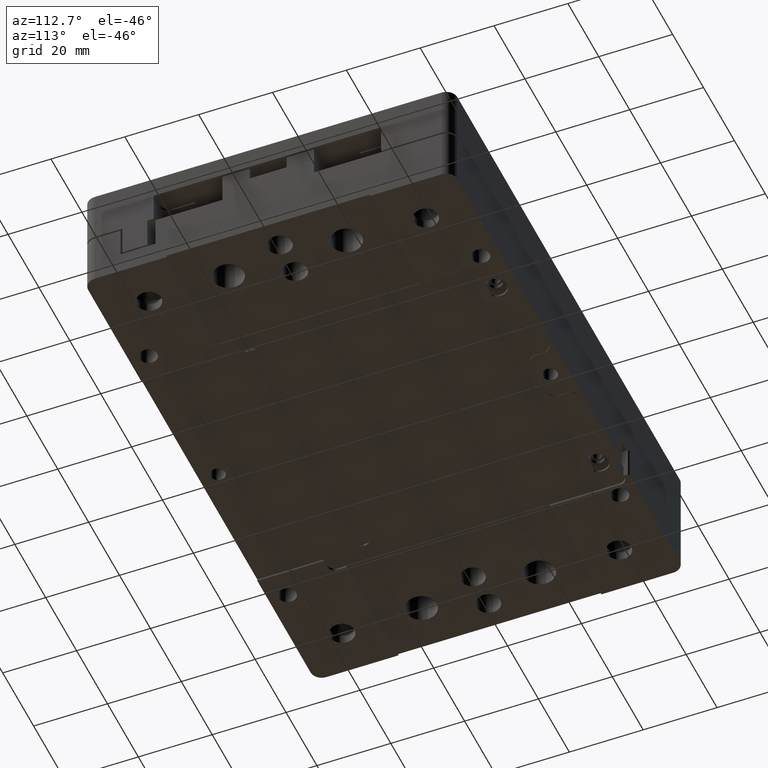
[diagram: clean part render]
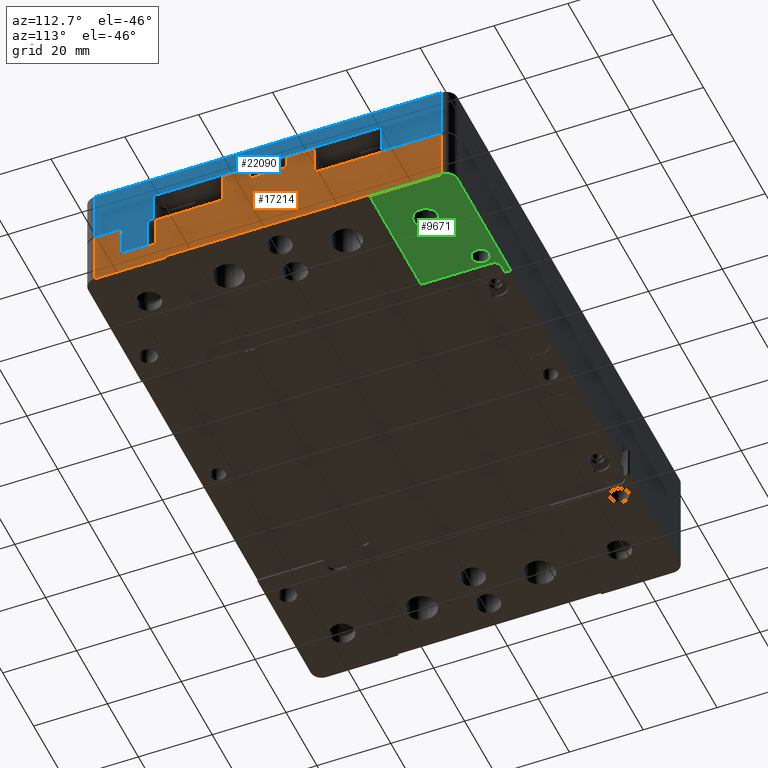
[diagram: same view with three faces highlighted in distinct colors, each labeled with its STEP entity id]
A machine part, auxiliary view with three faces highlighted in distinct colors.
Their STEP definitions:

[orange] entity #17214 — the highlighted planar face has unit normal (1, 0, 0).
#42 = ORIENTED_EDGE ( 'NONE', *, *, #4631, .T. ) ;
#48 = DIRECTION ( 'NONE',  ( -0.000000000000000000, -1.000000000000000000, -0.000000000000000000 ) ) ;
#84 = VERTEX_POINT ( 'NONE', #12490 ) ;
#122 = VERTEX_POINT ( 'NONE', #15903 ) ;
#240 = VECTOR ( 'NONE', #22433, 1000.000000000000000 ) ;
#380 = VECTOR ( 'NONE', #9598, 1000.000000000000000 ) ;
#397 = ORIENTED_EDGE ( 'NONE', *, *, #5845, .T. ) ;
#461 = VERTEX_POINT ( 'NONE', #7943 ) ;
#736 = PLANE ( 'NONE',  #7370 ) ;
#758 = LINE ( 'NONE', #21424, #380 ) ;
#859 = CARTESIAN_POINT ( 'NONE',  ( 75.00000000000000000, -12.40000000000000213, 0.000000000000000000 ) ) ;
#1026 = CARTESIAN_POINT ( 'NONE',  ( 75.00000000000000000, 0.000000000000000000, -8.500000000000000000 ) ) ;
#1033 = EDGE_CURVE ( 'NONE', #5018, #84, #2078, .T. ) ;
#1131 = CARTESIAN_POINT ( 'NONE',  ( 75.00000000000000000, 0.000000000000000000, 8.300000000000000711 ) ) ;
#1286 = VECTOR ( 'NONE', #18281, 1000.000000000000000 ) ;
#1306 = ORIENTED_EDGE ( 'NONE', *, *, #14748, .T. ) ;
#1744 = VERTEX_POINT ( 'NONE', #10100 ) ;
#1747 = CARTESIAN_POINT ( 'NONE',  ( 75.00000000000000000, -50.00000000000000000, -14.50000000000000000 ) ) ;
#1867 = VERTEX_POINT ( 'NONE', #5229 ) ;
#2078 = LINE ( 'NONE', #1747, #21326 ) ;
#2336 = LINE ( 'NONE', #2673, #17002 ) ;
#2390 = DIRECTION ( 'NONE',  ( 0.000000000000000000, -1.000000000000000000, -0.000000000000000000 ) ) ;
#2608 = VERTEX_POINT ( 'NONE', #10042 ) ;
#2673 = CARTESIAN_POINT ( 'NONE',  ( 75.00000000000000000, -12.40000000000000213, 0.000000000000000000 ) ) ;
#2819 = LINE ( 'NONE', #8500, #17448 ) ;
#2849 = DIRECTION ( 'NONE',  ( -0.000000000000000000, -0.000000000000000000, 1.000000000000000000 ) ) ;
#2925 = ORIENTED_EDGE ( 'NONE', *, *, #18440, .T. ) ;
#3209 = VECTOR ( 'NONE', #20476, 1000.000000000000000 ) ;
#3415 = VECTOR ( 'NONE', #4888, 1000.000000000000000 ) ;
#3736 = LINE ( 'NONE', #13945, #12061 ) ;
#3844 = VECTOR ( 'NONE', #21294, 1000.000000000000000 ) ;
#3905 = LINE ( 'NONE', #21613, #5376 ) ;
#3966 = CARTESIAN_POINT ( 'NONE',  ( 75.00000000000001421, -47.00000000000000000, 38.02208000000000965 ) ) ;
#4083 = VERTEX_POINT ( 'NONE', #15339 ) ;
#4143 = LINE ( 'NONE', #14683, #13889 ) ;
#4187 = CARTESIAN_POINT ( 'NONE',  ( 75.00000000000000000, 50.00000000000000000, 0.000000000000000000 ) ) ;
#4230 = EDGE_CURVE ( 'NONE', #12689, #1744, #9084, .T. ) ;
#4249 = DIRECTION ( 'NONE',  ( 0.000000000000000000, 0.000000000000000000, -1.000000000000000000 ) ) ;
#4370 = DIRECTION ( 'NONE',  ( -0.000000000000000000, 1.000000000000000000, 0.000000000000000000 ) ) ;
#4447 = LINE ( 'NONE', #1026, #13950 ) ;
#4536 = VECTOR ( 'NONE', #2849, 1000.000000000000000 ) ;
#4631 = EDGE_CURVE ( 'NONE', #461, #4083, #2819, .T. ) ;
#4888 = DIRECTION ( 'NONE',  ( 0.000000000000000000, -1.000000000000000000, -0.000000000000000000 ) ) ;
#4923 = CARTESIAN_POINT ( 'NONE',  ( 75.00000000000000000, -40.00000000000000000, -8.500000000000000000 ) ) ;
#5018 = VERTEX_POINT ( 'NONE', #6523 ) ;
#5229 = CARTESIAN_POINT ( 'NONE',  ( 75.00000000000000000, 5.000000000000000000, 8.300000000000000711 ) ) ;
#5275 = EDGE_LOOP ( 'NONE', ( #9656, #5757, #12588, #9141, #7588, #397, #16127, #14364, #18821, #42, #2925, #11528, #19270, #15479, #5400, #17859, #5321, #1306, #14204, #10173 ) ) ;
#5321 = ORIENTED_EDGE ( 'NONE', *, *, #16289, .T. ) ;
#5349 = DIRECTION ( 'NONE',  ( -0.000000000000000000, -0.000000000000000000, 1.000000000000000000 ) ) ;
#5376 = VECTOR ( 'NONE', #14444, 1000.000000000000000 ) ;
#5400 = ORIENTED_EDGE ( 'NONE', *, *, #10929, .F. ) ;
#5573 = LINE ( 'NONE', #3966, #14111 ) ;
#5757 = ORIENTED_EDGE ( 'NONE', *, *, #9622, .T. ) ;
#5845 = EDGE_CURVE ( 'NONE', #15345, #20791, #3736, .T. ) ;
#6523 = CARTESIAN_POINT ( 'NONE',  ( 75.00000000000001421, 47.00000000000000000, -14.49999999999999822 ) ) ;
#7092 = CARTESIAN_POINT ( 'NONE',  ( 75.00000000000001421, -47.00000000000000000, -14.49999999999999822 ) ) ;
#7151 = CARTESIAN_POINT ( 'NONE',  ( 75.00000000000000000, 0.000000000000000000, 8.300000000000000711 ) ) ;
#7366 = CARTESIAN_POINT ( 'NONE',  ( 75.00000000000000000, -30.50000000000000000, -8.500000000000000000 ) ) ;
#7370 = AXIS2_PLACEMENT_3D ( 'NONE', #16399, #14789, #4249 ) ;
#7480 = DIRECTION ( 'NONE',  ( 0.000000000000000000, -1.000000000000000000, -0.000000000000000000 ) ) ;
#7588 = ORIENTED_EDGE ( 'NONE', *, *, #20027, .T. ) ;
#7705 = LINE ( 'NONE', #4187, #8221 ) ;
#7730 = CARTESIAN_POINT ( 'NONE',  ( 75.00000000000000000, 27.50000000000000000, -14.00000000000000000 ) ) ;
#7737 = EDGE_CURVE ( 'NONE', #1744, #13121, #21747, .T. ) ;
#7905 = VERTEX_POINT ( 'NONE', #7366 ) ;
#7943 = CARTESIAN_POINT ( 'NONE',  ( 75.00000000000000000, -27.50000000000000000, -14.50000000000000000 ) ) ;
#8221 = VECTOR ( 'NONE', #14515, 1000.000000000000000 ) ;
#8500 = CARTESIAN_POINT ( 'NONE',  ( 75.00000000000000000, -27.50000000000000000, 0.000000000000000000 ) ) ;
#8791 = EDGE_CURVE ( 'NONE', #12576, #84, #3905, .T. ) ;
#8873 = EDGE_CURVE ( 'NONE', #10646, #7905, #20250, .T. ) ;
#9084 = LINE ( 'NONE', #17829, #9798 ) ;
#9141 = ORIENTED_EDGE ( 'NONE', *, *, #8873, .T. ) ;
#9214 = VERTEX_POINT ( 'NONE', #17848 ) ;
#9547 = VERTEX_POINT ( 'NONE', #12219 ) ;
#9598 = DIRECTION ( 'NONE',  ( 0.000000000000000000, 0.000000000000000000, -1.000000000000000000 ) ) ;
#9622 = EDGE_CURVE ( 'NONE', #9547, #13335, #2336, .T. ) ;
#9656 = ORIENTED_EDGE ( 'NONE', *, *, #19384, .T. ) ;
#9798 = VECTOR ( 'NONE', #20903, 1000.000000000000000 ) ;
#9893 = LINE ( 'NONE', #16935, #4536 ) ;
#9971 = VERTEX_POINT ( 'NONE', #7092 ) ;
#10042 = CARTESIAN_POINT ( 'NONE',  ( 75.00000000000000000, 12.40000000000000213, 8.300000000000000711 ) ) ;
#10100 = CARTESIAN_POINT ( 'NONE',  ( 75.00000000000000000, -5.000000000000000000, 4.799999999999999822 ) ) ;
#10173 = ORIENTED_EDGE ( 'NONE', *, *, #7737, .T. ) ;
#10646 = VERTEX_POINT ( 'NONE', #16931 ) ;
#10929 = EDGE_CURVE ( 'NONE', #122, #9214, #7705, .T. ) ;
#11528 = ORIENTED_EDGE ( 'NONE', *, *, #8791, .T. ) ;
#11677 = LINE ( 'NONE', #16797, #1286 ) ;
#11694 = CARTESIAN_POINT ( 'NONE',  ( 75.00000000000000000, 5.000000000000000000, 4.799999999999999822 ) ) ;
#12061 = VECTOR ( 'NONE', #12565, 1000.000000000000000 ) ;
#12219 = CARTESIAN_POINT ( 'NONE',  ( 75.00000000000000000, -12.40000000000000213, 8.300000000000000711 ) ) ;
#12490 = CARTESIAN_POINT ( 'NONE',  ( 75.00000000000000000, 27.49999999999999645, -14.50000000000000000 ) ) ;
#12565 = DIRECTION ( 'NONE',  ( -0.000000000000000000, -0.000000000000000000, 1.000000000000000000 ) ) ;
#12576 = VERTEX_POINT ( 'NONE', #7730 ) ;
#12588 = ORIENTED_EDGE ( 'NONE', *, *, #21832, .T. ) ;
#12641 = DIRECTION ( 'NONE',  ( 0.000000000000000000, -1.000000000000000000, -0.000000000000000000 ) ) ;
#12689 = VERTEX_POINT ( 'NONE', #11694 ) ;
#13121 = VERTEX_POINT ( 'NONE', #20419 ) ;
#13335 = VERTEX_POINT ( 'NONE', #859 ) ;
#13629 = CARTESIAN_POINT ( 'NONE',  ( 75.00000000000000000, -39.99999999999999289, 0.000000000000000000 ) ) ;
#13889 = VECTOR ( 'NONE', #4370, 1000.000000000000000 ) ;
#13945 = CARTESIAN_POINT ( 'NONE',  ( 75.00000000000000000, -40.00000000000000000, 0.000000000000000000 ) ) ;
#13950 = VECTOR ( 'NONE', #2390, 1000.000000000000000 ) ;
#13959 = DIRECTION ( 'NONE',  ( -0.000000000000000000, 1.000000000000000000, 0.000000000000000000 ) ) ;
#14084 = EDGE_CURVE ( 'NONE', #21617, #20791, #17598, .T. ) ;
#14111 = VECTOR ( 'NONE', #5349, 1000.000000000000000 ) ;
#14162 = EDGE_CURVE ( 'NONE', #9971, #21617, #5573, .T. ) ;
#14204 = ORIENTED_EDGE ( 'NONE', *, *, #4230, .T. ) ;
#14352 = CARTESIAN_POINT ( 'NONE',  ( 75.00000000000000000, -5.000000000000000000, 0.000000000000000000 ) ) ;
#14364 = ORIENTED_EDGE ( 'NONE', *, *, #14162, .F. ) ;
#14444 = DIRECTION ( 'NONE',  ( -0.000000000000000000, 0.000000000000000000, -1.000000000000000000 ) ) ;
#14515 = DIRECTION ( 'NONE',  ( -0.000000000000000000, 1.000000000000000000, 0.000000000000000000 ) ) ;
#14683 = CARTESIAN_POINT ( 'NONE',  ( 75.00000000000000000, 0.000000000000000000, -14.00000000000000000 ) ) ;
#14748 = EDGE_CURVE ( 'NONE', #1867, #12689, #758, .T. ) ;
#14789 = DIRECTION ( 'NONE',  ( 1.000000000000000000, 0.000000000000000000, 0.000000000000000000 ) ) ;
#15339 = CARTESIAN_POINT ( 'NONE',  ( 75.00000000000000000, -27.50000000000000000, -14.00000000000000000 ) ) ;
#15345 = VERTEX_POINT ( 'NONE', #4923 ) ;
#15479 = ORIENTED_EDGE ( 'NONE', *, *, #21028, .F. ) ;
#15903 = CARTESIAN_POINT ( 'NONE',  ( 75.00000000000000000, 12.40000000000000213, 0.000000000000000000 ) ) ;
#16127 = ORIENTED_EDGE ( 'NONE', *, *, #14084, .F. ) ;
#16173 = LINE ( 'NONE', #17549, #17299 ) ;
#16289 = EDGE_CURVE ( 'NONE', #2608, #1867, #19205, .T. ) ;
#16399 = CARTESIAN_POINT ( 'NONE',  ( 75.00000000000000000, 0.000000000000000000, 0.000000000000000000 ) ) ;
#16501 = CARTESIAN_POINT ( 'NONE',  ( 75.00000000000000000, -30.50000000000000000, 0.000000000000000000 ) ) ;
#16510 = FACE_OUTER_BOUND ( 'NONE', #5275, .T. ) ;
#16797 = CARTESIAN_POINT ( 'NONE',  ( 75.00000000000001421, 47.00000000000000000, -44.22207999999999828 ) ) ;
#16803 = LINE ( 'NONE', #1131, #3415 ) ;
#16931 = CARTESIAN_POINT ( 'NONE',  ( 75.00000000000000000, -30.50000000000000000, 0.000000000000000000 ) ) ;
#16935 = CARTESIAN_POINT ( 'NONE',  ( 75.00000000000000000, 12.40000000000000213, 0.000000000000000000 ) ) ;
#17002 = VECTOR ( 'NONE', #19612, 1000.000000000000000 ) ;
#17214 = ADVANCED_FACE ( 'NONE', ( #16510 ), #736, .T. ) ;
#17299 = VECTOR ( 'NONE', #12641, 1000.000000000000000 ) ;
#17448 = VECTOR ( 'NONE', #18624, 1000.000000000000000 ) ;
#17549 = CARTESIAN_POINT ( 'NONE',  ( 75.00000000000000000, 0.000000000000000000, 0.000000000000000000 ) ) ;
#17598 = LINE ( 'NONE', #19643, #21385 ) ;
#17829 = CARTESIAN_POINT ( 'NONE',  ( 75.00000000000000000, 0.000000000000000000, 4.799999999999999822 ) ) ;
#17848 = CARTESIAN_POINT ( 'NONE',  ( 75.00000000000001421, 47.00000000000000000, 0.000000000000000000 ) ) ;
#17859 = ORIENTED_EDGE ( 'NONE', *, *, #20688, .T. ) ;
#18213 = VECTOR ( 'NONE', #7480, 1000.000000000000000 ) ;
#18281 = DIRECTION ( 'NONE',  ( -0.000000000000000000, -0.000000000000000000, -1.000000000000000000 ) ) ;
#18440 = EDGE_CURVE ( 'NONE', #4083, #12576, #4143, .T. ) ;
#18624 = DIRECTION ( 'NONE',  ( -0.000000000000000000, -0.000000000000000000, 1.000000000000000000 ) ) ;
#18821 = ORIENTED_EDGE ( 'NONE', *, *, #21669, .F. ) ;
#19044 = LINE ( 'NONE', #19151, #240 ) ;
#19151 = CARTESIAN_POINT ( 'NONE',  ( 75.00000000000000000, -50.00000000000000000, -14.50000000000000000 ) ) ;
#19205 = LINE ( 'NONE', #7151, #18213 ) ;
#19270 = ORIENTED_EDGE ( 'NONE', *, *, #1033, .F. ) ;
#19384 = EDGE_CURVE ( 'NONE', #13121, #9547, #16803, .T. ) ;
#19612 = DIRECTION ( 'NONE',  ( 0.000000000000000000, 0.000000000000000000, -1.000000000000000000 ) ) ;
#19643 = CARTESIAN_POINT ( 'NONE',  ( 75.00000000000000000, 50.00000000000000000, 0.000000000000000000 ) ) ;
#20027 = EDGE_CURVE ( 'NONE', #7905, #15345, #4447, .T. ) ;
#20250 = LINE ( 'NONE', #16501, #3209 ) ;
#20419 = CARTESIAN_POINT ( 'NONE',  ( 75.00000000000000000, -5.000000000000000000, 8.300000000000000711 ) ) ;
#20476 = DIRECTION ( 'NONE',  ( 0.000000000000000000, 0.000000000000000000, -1.000000000000000000 ) ) ;
#20688 = EDGE_CURVE ( 'NONE', #122, #2608, #9893, .T. ) ;
#20791 = VERTEX_POINT ( 'NONE', #13629 ) ;
#20903 = DIRECTION ( 'NONE',  ( 0.000000000000000000, -1.000000000000000000, -0.000000000000000000 ) ) ;
#21028 = EDGE_CURVE ( 'NONE', #9214, #5018, #11677, .T. ) ;
#21294 = DIRECTION ( 'NONE',  ( -0.000000000000000000, -0.000000000000000000, 1.000000000000000000 ) ) ;
#21326 = VECTOR ( 'NONE', #48, 1000.000000000000000 ) ;
#21385 = VECTOR ( 'NONE', #13959, 1000.000000000000000 ) ;
#21424 = CARTESIAN_POINT ( 'NONE',  ( 75.00000000000000000, 5.000000000000000000, 0.000000000000000000 ) ) ;
#21613 = CARTESIAN_POINT ( 'NONE',  ( 75.00000000000000000, 27.50000000000000000, -14.50000000000000000 ) ) ;
#21617 = VERTEX_POINT ( 'NONE', #22212 ) ;
#21669 = EDGE_CURVE ( 'NONE', #461, #9971, #19044, .T. ) ;
#21747 = LINE ( 'NONE', #14352, #3844 ) ;
#21832 = EDGE_CURVE ( 'NONE', #13335, #10646, #16173, .T. ) ;
#22212 = CARTESIAN_POINT ( 'NONE',  ( 75.00000000000001421, -47.00000000000000000, 0.000000000000000000 ) ) ;
#22433 = DIRECTION ( 'NONE',  ( -0.000000000000000000, -1.000000000000000000, -0.000000000000000000 ) ) ;

[blue] entity #22090 — the highlighted planar face has unit normal (1, 0, 0).
#160 = LINE ( 'NONE', #7524, #13898 ) ;
#235 = LINE ( 'NONE', #8757, #22003 ) ;
#548 = EDGE_CURVE ( 'NONE', #12007, #7563, #12030, .T. ) ;
#988 = VERTEX_POINT ( 'NONE', #19251 ) ;
#1511 = CARTESIAN_POINT ( 'NONE',  ( 75.00000000000000000, -31.00000000000000000, 9.000000000000001776 ) ) ;
#1599 = VERTEX_POINT ( 'NONE', #2725 ) ;
#1733 = VECTOR ( 'NONE', #8888, 1000.000000000000000 ) ;
#1786 = DIRECTION ( 'NONE',  ( 0.000000000000000000, 0.000000000000000000, -1.000000000000000000 ) ) ;
#1945 = CARTESIAN_POINT ( 'NONE',  ( 75.00000000000000000, 0.000000000000000000, 0.000000000000000000 ) ) ;
#2023 = DIRECTION ( 'NONE',  ( 0.000000000000000000, 0.000000000000000000, -1.000000000000000000 ) ) ;
#2069 = CARTESIAN_POINT ( 'NONE',  ( 75.00000000000000000, -39.50000000000000000, 0.000000000000000000 ) ) ;
#2196 = VECTOR ( 'NONE', #19530, 1000.000000000000000 ) ;
#2229 = VERTEX_POINT ( 'NONE', #5306 ) ;
#2285 = VERTEX_POINT ( 'NONE', #7108 ) ;
#2293 = VECTOR ( 'NONE', #16498, 1000.000000000000000 ) ;
#2550 = CARTESIAN_POINT ( 'NONE',  ( 75.00000000000000000, -32.70000000000000995, -8.000000000000000000 ) ) ;
#2725 = CARTESIAN_POINT ( 'NONE',  ( 75.00000000000000000, 47.00000000000000000, 0.5000000000000002220 ) ) ;
#2840 = DIRECTION ( 'NONE',  ( -0.000000000000000000, -1.000000000000000000, -0.000000000000000000 ) ) ;
#3058 = LINE ( 'NONE', #8613, #5213 ) ;
#3739 = CARTESIAN_POINT ( 'NONE',  ( 75.00000000000000000, -46.99999203718000018, 0.000000000000000000 ) ) ;
#3761 = DIRECTION ( 'NONE',  ( 0.000000000000000000, 1.000000000000000000, 0.000000000000000000 ) ) ;
#3826 = ORIENTED_EDGE ( 'NONE', *, *, #22309, .T. ) ;
#4133 = ORIENTED_EDGE ( 'NONE', *, *, #17786, .T. ) ;
#4252 = EDGE_CURVE ( 'NONE', #10185, #18598, #12586, .T. ) ;
#4767 = CARTESIAN_POINT ( 'NONE',  ( 75.00000000000000000, 0.000000000000000000, 0.5000000000000000000 ) ) ;
#4995 = LINE ( 'NONE', #4767, #6621 ) ;
#5213 = VECTOR ( 'NONE', #16907, 1000.000000000000000 ) ;
#5306 = CARTESIAN_POINT ( 'NONE',  ( 75.00000000000000000, -39.50000000000000000, -8.000000000000000000 ) ) ;
#5384 = LINE ( 'NONE', #2069, #1733 ) ;
#5541 = LINE ( 'NONE', #17465, #7614 ) ;
#5583 = FACE_OUTER_BOUND ( 'NONE', #6376, .T. ) ;
#5683 = CARTESIAN_POINT ( 'NONE',  ( 75.00000000000000000, 0.000000000000000000, 9.000000000000001776 ) ) ;
#5776 = EDGE_CURVE ( 'NONE', #988, #1599, #4995, .T. ) ;
#5935 = LINE ( 'NONE', #21693, #15172 ) ;
#5957 = CARTESIAN_POINT ( 'NONE',  ( 75.00000000000000000, -31.00000000000000000, 0.000000000000000000 ) ) ;
#6376 = EDGE_LOOP ( 'NONE', ( #22228, #12557, #8483, #10516, #10010, #20132, #4133, #20194, #9086, #3826, #13130, #21108 ) ) ;
#6621 = VECTOR ( 'NONE', #20664, 1000.000000000000000 ) ;
#7088 = CARTESIAN_POINT ( 'NONE',  ( 75.00004029560935237, -46.99999703324056810, 14.89991916400046712 ) ) ;
#7096 = VERTEX_POINT ( 'NONE', #22026 ) ;
#7108 = CARTESIAN_POINT ( 'NONE',  ( 75.00000000000000000, -31.00000000000000000, 0.6999999999999999556 ) ) ;
#7524 = CARTESIAN_POINT ( 'NONE',  ( 75.00000000000000000, 30.60000000000000142, 0.000000000000000000 ) ) ;
#7563 = VERTEX_POINT ( 'NONE', #15843 ) ;
#7603 = LINE ( 'NONE', #12923, #20573 ) ;
#7614 = VECTOR ( 'NONE', #1786, 1000.000000000000000 ) ;
#7750 = VERTEX_POINT ( 'NONE', #2550 ) ;
#8157 = CARTESIAN_POINT ( 'NONE',  ( 75.00000000000000000, -39.50000000000000000, 0.5000000000000000000 ) ) ;
#8483 = ORIENTED_EDGE ( 'NONE', *, *, #5776, .T. ) ;
#8613 = CARTESIAN_POINT ( 'NONE',  ( 75.00000000000000000, 0.000000000000000000, 0.5000000000000000000 ) ) ;
#8757 = CARTESIAN_POINT ( 'NONE',  ( 75.00000000000000000, -2.131628207279999844E-14, 14.89999999999998259 ) ) ;
#8888 = DIRECTION ( 'NONE',  ( 0.000000000000000000, 0.000000000000000000, -1.000000000000000000 ) ) ;
#9086 = ORIENTED_EDGE ( 'NONE', *, *, #22254, .T. ) ;
#10010 = ORIENTED_EDGE ( 'NONE', *, *, #21993, .F. ) ;
#10034 = CARTESIAN_POINT ( 'NONE',  ( 75.00000000000000000, 30.60000000000000142, 9.000000000000001776 ) ) ;
#10185 = VERTEX_POINT ( 'NONE', #1511 ) ;
#10407 = VECTOR ( 'NONE', #19991, 1000.000000000000000 ) ;
#10516 = ORIENTED_EDGE ( 'NONE', *, *, #14555, .F. ) ;
#11489 = AXIS2_PLACEMENT_3D ( 'NONE', #1945, #13972, #15686 ) ;
#11562 = LINE ( 'NONE', #16566, #10407 ) ;
#11764 = EDGE_CURVE ( 'NONE', #14341, #2229, #5384, .T. ) ;
#11998 = EDGE_CURVE ( 'NONE', #18598, #988, #160, .T. ) ;
#12007 = VERTEX_POINT ( 'NONE', #7088 ) ;
#12030 = LINE ( 'NONE', #3739, #15856 ) ;
#12113 = EDGE_CURVE ( 'NONE', #2285, #10185, #18555, .T. ) ;
#12557 = ORIENTED_EDGE ( 'NONE', *, *, #11998, .T. ) ;
#12586 = LINE ( 'NONE', #5683, #2196 ) ;
#12744 = DIRECTION ( 'NONE',  ( 0.000000000000000000, 0.000000000000000000, -1.000000000000000000 ) ) ;
#12810 = DIRECTION ( 'NONE',  ( -0.000000000000000000, 1.000000000000000000, 0.000000000000000000 ) ) ;
#12923 = CARTESIAN_POINT ( 'NONE',  ( 75.00000000000000000, 0.000000000000000000, -8.000000000000000000 ) ) ;
#13130 = ORIENTED_EDGE ( 'NONE', *, *, #13874, .F. ) ;
#13867 = PLANE ( 'NONE',  #11489 ) ;
#13874 = EDGE_CURVE ( 'NONE', #2285, #7096, #5935, .T. ) ;
#13898 = VECTOR ( 'NONE', #12744, 1000.000000000000000 ) ;
#13972 = DIRECTION ( 'NONE',  ( 1.000000000000000000, 0.000000000000000000, 0.000000000000000000 ) ) ;
#14341 = VERTEX_POINT ( 'NONE', #8157 ) ;
#14555 = EDGE_CURVE ( 'NONE', #20430, #1599, #5541, .T. ) ;
#15172 = VECTOR ( 'NONE', #2840, 1000.000000000000000 ) ;
#15686 = DIRECTION ( 'NONE',  ( 0.000000000000000000, 0.000000000000000000, -1.000000000000000000 ) ) ;
#15843 = CARTESIAN_POINT ( 'NONE',  ( 75.00000000000000000, -46.99999562044899903, 0.5000000000000004441 ) ) ;
#15856 = VECTOR ( 'NONE', #2023, 1000.000000000000000 ) ;
#16498 = DIRECTION ( 'NONE',  ( -0.000000000000000000, -0.000000000000000000, 1.000000000000000000 ) ) ;
#16566 = CARTESIAN_POINT ( 'NONE',  ( 75.00000000000000000, -32.70000000000000995, 0.000000000000000000 ) ) ;
#16907 = DIRECTION ( 'NONE',  ( -0.000000000000000000, 1.000000000000000000, 0.000000000000000000 ) ) ;
#17465 = CARTESIAN_POINT ( 'NONE',  ( 75.00000000000000000, 47.00000000000000000, 0.000000000000000000 ) ) ;
#17786 = EDGE_CURVE ( 'NONE', #7563, #14341, #3058, .T. ) ;
#18555 = LINE ( 'NONE', #5957, #2293 ) ;
#18598 = VERTEX_POINT ( 'NONE', #10034 ) ;
#18910 = CARTESIAN_POINT ( 'NONE',  ( 75.00004051673839456, 46.99999601890659306, 14.89991916984327958 ) ) ;
#19251 = CARTESIAN_POINT ( 'NONE',  ( 75.00000000000000000, 30.60000000000000142, 0.5000000000000001110 ) ) ;
#19530 = DIRECTION ( 'NONE',  ( -0.000000000000000000, 1.000000000000000000, 0.000000000000000000 ) ) ;
#19991 = DIRECTION ( 'NONE',  ( -0.000000000000000000, -0.000000000000000000, 1.000000000000000000 ) ) ;
#20132 = ORIENTED_EDGE ( 'NONE', *, *, #548, .T. ) ;
#20194 = ORIENTED_EDGE ( 'NONE', *, *, #11764, .T. ) ;
#20430 = VERTEX_POINT ( 'NONE', #18910 ) ;
#20573 = VECTOR ( 'NONE', #12810, 1000.000000000000000 ) ;
#20664 = DIRECTION ( 'NONE',  ( -0.000000000000000000, 1.000000000000000000, 0.000000000000000000 ) ) ;
#21108 = ORIENTED_EDGE ( 'NONE', *, *, #12113, .T. ) ;
#21693 = CARTESIAN_POINT ( 'NONE',  ( 75.00000000000000000, 0.000000000000000000, 0.6999999999999999556 ) ) ;
#21993 = EDGE_CURVE ( 'NONE', #12007, #20430, #235, .T. ) ;
#22003 = VECTOR ( 'NONE', #3761, 1000.000000000000000 ) ;
#22026 = CARTESIAN_POINT ( 'NONE',  ( 75.00000000000000000, -32.70000000000000995, 0.6999999999999996225 ) ) ;
#22090 = ADVANCED_FACE ( 'NONE', ( #5583 ), #13867, .T. ) ;
#22228 = ORIENTED_EDGE ( 'NONE', *, *, #4252, .T. ) ;
#22254 = EDGE_CURVE ( 'NONE', #2229, #7750, #7603, .T. ) ;
#22309 = EDGE_CURVE ( 'NONE', #7750, #7096, #11562, .T. ) ;

[green] entity #9671 — the highlighted planar face has unit normal (0, 0, -1).
#48 = DIRECTION ( 'NONE',  ( -0.000000000000000000, -1.000000000000000000, -0.000000000000000000 ) ) ;
#63 = VECTOR ( 'NONE', #3970, 1000.000000000000000 ) ;
#84 = VERTEX_POINT ( 'NONE', #12490 ) ;
#87 = EDGE_CURVE ( 'NONE', #16020, #5239, #8977, .T. ) ;
#639 = DIRECTION ( 'NONE',  ( -1.000000000000000000, 0.000000000000000000, -0.000000000000000000 ) ) ;
#755 = DIRECTION ( 'NONE',  ( 0.000000000000000000, 0.000000000000000000, -1.000000000000000000 ) ) ;
#868 = VECTOR ( 'NONE', #1009, 1000.000000000000000 ) ;
#925 = VERTEX_POINT ( 'NONE', #12084 ) ;
#1009 = DIRECTION ( 'NONE',  ( -0.000000000000000000, 1.000000000000000000, 0.000000000000000000 ) ) ;
#1033 = EDGE_CURVE ( 'NONE', #5018, #84, #2078, .T. ) ;
#1161 = AXIS2_PLACEMENT_3D ( 'NONE', #1267, #5141, #8530 ) ;
#1267 = CARTESIAN_POINT ( 'NONE',  ( 39.75000000000000000, 46.50000000000000000, -14.50000000000000000 ) ) ;
#1414 = DIRECTION ( 'NONE',  ( -1.000000000000000000, 0.000000000000000000, 0.000000000000000000 ) ) ;
#1747 = CARTESIAN_POINT ( 'NONE',  ( 75.00000000000000000, -50.00000000000000000, -14.50000000000000000 ) ) ;
#2078 = LINE ( 'NONE', #1747, #21326 ) ;
#2222 = LINE ( 'NONE', #17785, #11953 ) ;
#2391 = ORIENTED_EDGE ( 'NONE', *, *, #14029, .T. ) ;
#2561 = FACE_OUTER_BOUND ( 'NONE', #20985, .T. ) ;
#2948 = VECTOR ( 'NONE', #15710, 1000.000000000000000 ) ;
#3112 = LINE ( 'NONE', #5276, #2948 ) ;
#3332 = CIRCLE ( 'NONE', #1161, 2.000000000000001776 ) ;
#3596 = EDGE_CURVE ( 'NONE', #6437, #20821, #2222, .T. ) ;
#3684 = ORIENTED_EDGE ( 'NONE', *, *, #3596, .T. ) ;
#3917 = AXIS2_PLACEMENT_3D ( 'NONE', #11750, #16975, #1414 ) ;
#3970 = DIRECTION ( 'NONE',  ( -1.000000000000000000, -0.000000000000000000, 0.000000000000000000 ) ) ;
#4159 = CARTESIAN_POINT ( 'NONE',  ( -75.00000000000000000, -50.00000000000000000, -14.50000000000000000 ) ) ;
#4530 = CARTESIAN_POINT ( 'NONE',  ( 45.00000000000000000, 45.00000000000000000, -14.50000000000000000 ) ) ;
#4916 = EDGE_CURVE ( 'NONE', #84, #14284, #3112, .T. ) ;
#5018 = VERTEX_POINT ( 'NONE', #6523 ) ;
#5141 = DIRECTION ( 'NONE',  ( -0.000000000000000000, -0.000000000000000000, 1.000000000000000000 ) ) ;
#5239 = VERTEX_POINT ( 'NONE', #11478 ) ;
#5276 = CARTESIAN_POINT ( 'NONE',  ( -75.00000000000000000, 27.49999999999999645, -14.50000000000000000 ) ) ;
#5310 = EDGE_CURVE ( 'NONE', #5239, #6437, #3332, .T. ) ;
#5679 = LINE ( 'NONE', #12366, #63 ) ;
#6164 = ORIENTED_EDGE ( 'NONE', *, *, #13991, .T. ) ;
#6306 = CARTESIAN_POINT ( 'NONE',  ( 65.79999999999999716, 37.50000000000000000, -14.50000000000000000 ) ) ;
#6437 = VERTEX_POINT ( 'NONE', #7771 ) ;
#6523 = CARTESIAN_POINT ( 'NONE',  ( 75.00000000000001421, 47.00000000000000000, -14.49999999999999822 ) ) ;
#6708 = DIRECTION ( 'NONE',  ( 1.000000000000000000, 0.000000000000000000, 0.000000000000000000 ) ) ;
#6711 = EDGE_LOOP ( 'NONE', ( #2391 ) ) ;
#6802 = ORIENTED_EDGE ( 'NONE', *, *, #5310, .T. ) ;
#6878 = CIRCLE ( 'NONE', #7596, 3.000000000000002665 ) ;
#7596 = AXIS2_PLACEMENT_3D ( 'NONE', #12146, #13396, #6708 ) ;
#7771 = CARTESIAN_POINT ( 'NONE',  ( 39.75000000000000000, 48.50000000000000000, -14.50000000000000000 ) ) ;
#8114 = VERTEX_POINT ( 'NONE', #6306 ) ;
#8244 = EDGE_LOOP ( 'NONE', ( #11911 ) ) ;
#8279 = LINE ( 'NONE', #13045, #868 ) ;
#8530 = DIRECTION ( 'NONE',  ( -1.000000000000000000, 0.000000000000000000, 0.000000000000000000 ) ) ;
#8590 = EDGE_CURVE ( 'NONE', #14284, #16020, #12961, .T. ) ;
#8742 = AXIS2_PLACEMENT_3D ( 'NONE', #4530, #16792, #21457 ) ;
#8977 = LINE ( 'NONE', #19219, #13261 ) ;
#9671 = ADVANCED_FACE ( 'NONE', ( #13113, #17904, #2561 ), #16306, .T. ) ;
#10001 = DIRECTION ( 'NONE',  ( 0.000000000000000000, 0.000000000000000000, 1.000000000000000000 ) ) ;
#11478 = CARTESIAN_POINT ( 'NONE',  ( 41.74999999999999289, 46.50000000000000000, -14.50000000000000000 ) ) ;
#11731 = ORIENTED_EDGE ( 'NONE', *, *, #4916, .T. ) ;
#11750 = CARTESIAN_POINT ( 'NONE',  ( 42.50000000000000000, 32.50000000000000000, -14.50000000000000000 ) ) ;
#11911 = ORIENTED_EDGE ( 'NONE', *, *, #15494, .T. ) ;
#11932 = CARTESIAN_POINT ( 'NONE',  ( 37.50000000000000000, 48.50000000000000711, -14.50000000000000000 ) ) ;
#11953 = VECTOR ( 'NONE', #16184, 1000.000000000000000 ) ;
#12084 = CARTESIAN_POINT ( 'NONE',  ( 72.00000000000001421, 50.00000000000000000, -14.49999999999999822 ) ) ;
#12146 = CARTESIAN_POINT ( 'NONE',  ( 72.00000000000001421, 47.00000000000000000, -14.49999999999999822 ) ) ;
#12366 = CARTESIAN_POINT ( 'NONE',  ( -75.00000000000000000, 50.00000000000000000, -14.50000000000000000 ) ) ;
#12490 = CARTESIAN_POINT ( 'NONE',  ( 75.00000000000000000, 27.49999999999999645, -14.50000000000000000 ) ) ;
#12961 = CIRCLE ( 'NONE', #3917, 4.999999999999997335 ) ;
#13045 = CARTESIAN_POINT ( 'NONE',  ( 37.50000000000000000, 50.00000000000000000, -14.50000000000000000 ) ) ;
#13113 = FACE_BOUND ( 'NONE', #6711, .T. ) ;
#13261 = VECTOR ( 'NONE', #13753, 1000.000000000000000 ) ;
#13307 = ORIENTED_EDGE ( 'NONE', *, *, #19495, .T. ) ;
#13396 = DIRECTION ( 'NONE',  ( -0.000000000000000000, -0.000000000000000000, -1.000000000000000000 ) ) ;
#13753 = DIRECTION ( 'NONE',  ( 0.000000000000000000, 1.000000000000000000, 0.000000000000000000 ) ) ;
#13991 = EDGE_CURVE ( 'NONE', #925, #5018, #6878, .T. ) ;
#14029 = EDGE_CURVE ( 'NONE', #8114, #8114, #18493, .T. ) ;
#14271 = ORIENTED_EDGE ( 'NONE', *, *, #87, .T. ) ;
#14284 = VERTEX_POINT ( 'NONE', #14510 ) ;
#14376 = VERTEX_POINT ( 'NONE', #20309 ) ;
#14510 = CARTESIAN_POINT ( 'NONE',  ( 42.49999999999999289, 27.49999999999999645, -14.50000000000000000 ) ) ;
#15494 = EDGE_CURVE ( 'NONE', #18794, #18794, #16357, .T. ) ;
#15560 = AXIS2_PLACEMENT_3D ( 'NONE', #4159, #755, #639 ) ;
#15710 = DIRECTION ( 'NONE',  ( -1.000000000000000000, 0.000000000000000000, -0.000000000000000000 ) ) ;
#16020 = VERTEX_POINT ( 'NONE', #22080 ) ;
#16184 = DIRECTION ( 'NONE',  ( -1.000000000000000000, -0.000000000000000000, -0.000000000000000000 ) ) ;
#16215 = EDGE_CURVE ( 'NONE', #925, #14376, #5679, .T. ) ;
#16306 = PLANE ( 'NONE',  #15560 ) ;
#16357 = CIRCLE ( 'NONE', #8742, 2.399999999999999467 ) ;
#16792 = DIRECTION ( 'NONE',  ( 0.000000000000000000, 0.000000000000000000, 1.000000000000000000 ) ) ;
#16975 = DIRECTION ( 'NONE',  ( 0.000000000000000000, 0.000000000000000000, -1.000000000000000000 ) ) ;
#17523 = ORIENTED_EDGE ( 'NONE', *, *, #1033, .T. ) ;
#17785 = CARTESIAN_POINT ( 'NONE',  ( 9.500000000000000000, 48.50000000000000000, -14.50000000000000000 ) ) ;
#17904 = FACE_BOUND ( 'NONE', #8244, .T. ) ;
#18493 = CIRCLE ( 'NONE', #21012, 3.299999999999997158 ) ;
#18757 = CARTESIAN_POINT ( 'NONE',  ( 62.50000000000000000, 37.50000000000000000, -14.50000000000000000 ) ) ;
#18794 = VERTEX_POINT ( 'NONE', #20382 ) ;
#18877 = DIRECTION ( 'NONE',  ( 1.000000000000000000, 0.000000000000000000, 0.000000000000000000 ) ) ;
#19075 = ORIENTED_EDGE ( 'NONE', *, *, #16215, .F. ) ;
#19219 = CARTESIAN_POINT ( 'NONE',  ( 41.74999999999999289, -50.00000000000000000, -14.50000000000000000 ) ) ;
#19495 = EDGE_CURVE ( 'NONE', #20821, #14376, #8279, .T. ) ;
#20309 = CARTESIAN_POINT ( 'NONE',  ( 37.50000000000000000, 50.00000000000000711, -14.50000000000000000 ) ) ;
#20382 = CARTESIAN_POINT ( 'NONE',  ( 47.39999999999999858, 45.00000000000000000, -14.50000000000000000 ) ) ;
#20801 = ORIENTED_EDGE ( 'NONE', *, *, #8590, .T. ) ;
#20821 = VERTEX_POINT ( 'NONE', #11932 ) ;
#20985 = EDGE_LOOP ( 'NONE', ( #6802, #3684, #13307, #19075, #6164, #17523, #11731, #20801, #14271 ) ) ;
#21012 = AXIS2_PLACEMENT_3D ( 'NONE', #18757, #10001, #18877 ) ;
#21326 = VECTOR ( 'NONE', #48, 1000.000000000000000 ) ;
#21457 = DIRECTION ( 'NONE',  ( 1.000000000000000000, 0.000000000000000000, 0.000000000000000000 ) ) ;
#22080 = CARTESIAN_POINT ( 'NONE',  ( 41.74999999999999289, 27.55657001667935546, -14.50000000000000000 ) ) ;